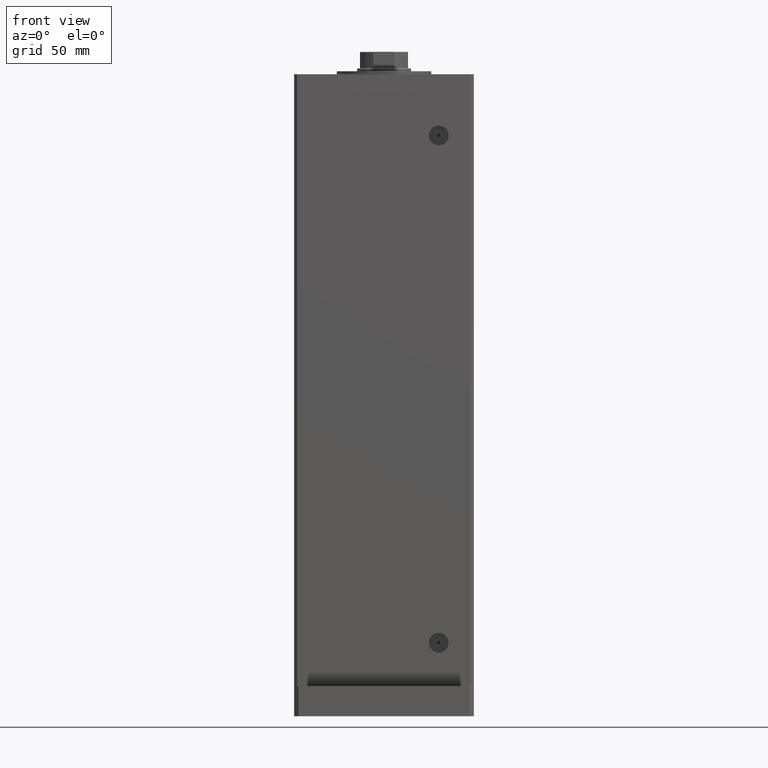
[diagram: clean part render]
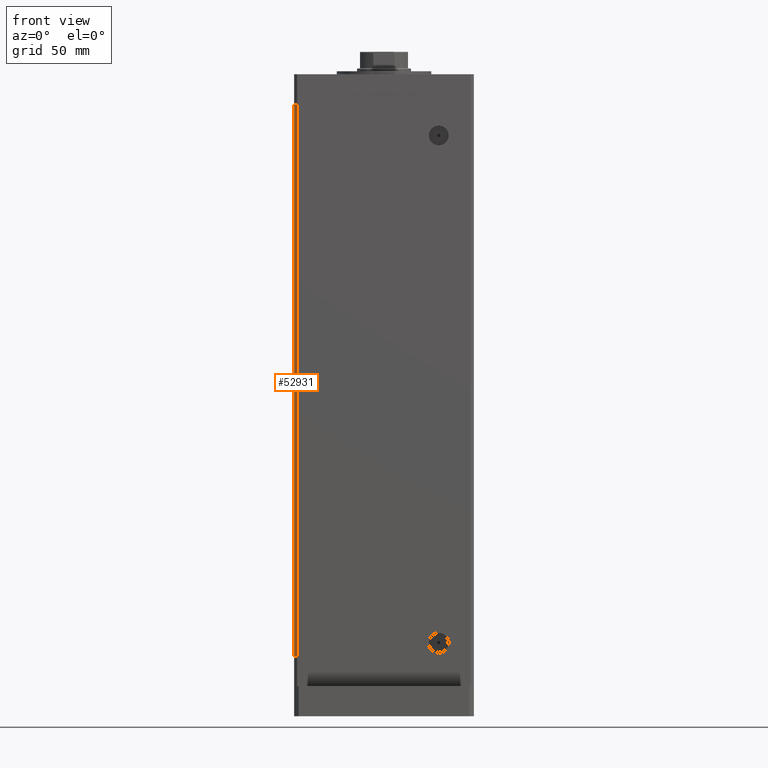
[diagram: same view with one face highlighted and labeled with its STEP entity id]
A machine part, front view. The second image highlights one B-rep face of the part: STEP entity #52931.
In plain terms, the highlighted planar face has unit normal (0.7071, 0.7071, 0).
Its self-contained STEP definition (entity closure, byte-faithful):
#166 = ORIENTED_EDGE ( 'NONE', *, *, #16975, .T. ) ;
#215 = EDGE_CURVE ( 'NONE', #15060, #18659, #6069, .T. ) ;
#985 = CARTESIAN_POINT ( 'NONE',  ( -59.99999999999998579, -49.00000000000000000, 368.5000000000000000 ) ) ;
#4301 = ORIENTED_EDGE ( 'NONE', *, *, #44464, .F. ) ;
#5683 = DIRECTION ( 'NONE',  ( -0.000000000000000000, -0.000000000000000000, -1.000000000000000000 ) ) ;
#6069 = LINE ( 'NONE', #31262, #28964 ) ;
#6216 = LINE ( 'NONE', #46895, #33467 ) ;
#6631 = CARTESIAN_POINT ( 'NONE',  ( -57.99999999999997868, -51.00000000000000711, 0.000000000000000000 ) ) ;
#9313 = VERTEX_POINT ( 'NONE', #6631 ) ;
#9377 = VECTOR ( 'NONE', #15403, 1000.000000000000000 ) ;
#10030 = EDGE_CURVE ( 'NONE', #33598, #9313, #17584, .T. ) ;
#12705 = DIRECTION ( 'NONE',  ( 0.7071067811865475727, 0.7071067811865475727, -0.000000000000000000 ) ) ;
#13255 = DIRECTION ( 'NONE',  ( 0.7071067811865474617, -0.7071067811865474617, 0.000000000000000000 ) ) ;
#15060 = VERTEX_POINT ( 'NONE', #37007 ) ;
#15403 = DIRECTION ( 'NONE',  ( -0.000000000000000000, -0.000000000000000000, -1.000000000000000000 ) ) ;
#16975 = EDGE_CURVE ( 'NONE', #15060, #33598, #52527, .T. ) ;
#17584 = LINE ( 'NONE', #50386, #21386 ) ;
#18659 = VERTEX_POINT ( 'NONE', #20071 ) ;
#18820 = ORIENTED_EDGE ( 'NONE', *, *, #215, .F. ) ;
#20071 = CARTESIAN_POINT ( 'NONE',  ( -57.99999999999997868, -51.00000000000000711, 368.5000000000000000 ) ) ;
#20306 = AXIS2_PLACEMENT_3D ( 'NONE', #985, #12705, #37357 ) ;
#21386 = VECTOR ( 'NONE', #13255, 1000.000000000000114 ) ;
#21740 = CARTESIAN_POINT ( 'NONE',  ( -59.99999999999998579, -49.00000000000000000, 0.000000000000000000 ) ) ;
#22032 = ORIENTED_EDGE ( 'NONE', *, *, #10030, .T. ) ;
#28964 = VECTOR ( 'NONE', #43202, 1000.000000000000114 ) ;
#29482 = PLANE ( 'NONE',  #20306 ) ;
#31262 = CARTESIAN_POINT ( 'NONE',  ( -59.99999999999998579, -49.00000000000000000, 368.5000000000000000 ) ) ;
#33467 = VECTOR ( 'NONE', #5683, 1000.000000000000000 ) ;
#33598 = VERTEX_POINT ( 'NONE', #21740 ) ;
#37007 = CARTESIAN_POINT ( 'NONE',  ( -59.99999999999998579, -49.00000000000000000, 368.5000000000000000 ) ) ;
#37357 = DIRECTION ( 'NONE',  ( -0.7071067811865474617, 0.7071067811865474617, 0.000000000000000000 ) ) ;
#37624 = FACE_OUTER_BOUND ( 'NONE', #52048, .T. ) ;
#39508 = CARTESIAN_POINT ( 'NONE',  ( -59.99999999999998579, -49.00000000000000000, 368.5000000000000000 ) ) ;
#43202 = DIRECTION ( 'NONE',  ( 0.7071067811865474617, -0.7071067811865474617, 0.000000000000000000 ) ) ;
#44464 = EDGE_CURVE ( 'NONE', #18659, #9313, #6216, .T. ) ;
#46895 = CARTESIAN_POINT ( 'NONE',  ( -57.99999999999997868, -51.00000000000000711, 368.5000000000000000 ) ) ;
#50386 = CARTESIAN_POINT ( 'NONE',  ( -59.99999999999998579, -49.00000000000000000, 0.000000000000000000 ) ) ;
#52048 = EDGE_LOOP ( 'NONE', ( #22032, #4301, #18820, #166 ) ) ;
#52527 = LINE ( 'NONE', #39508, #9377 ) ;
#52931 = ADVANCED_FACE ( 'NONE', ( #37624 ), #29482, .F. ) ;